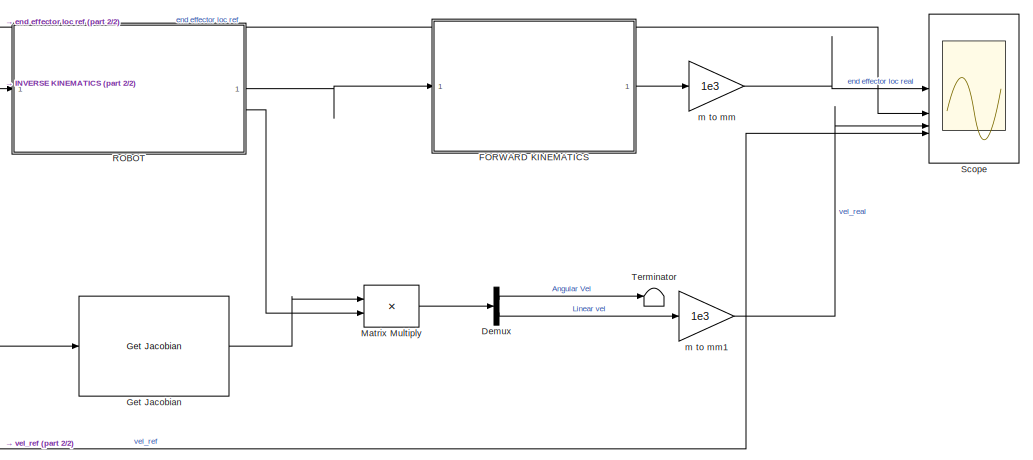
[diagram: root canvas - part 1/2, right side, full height]
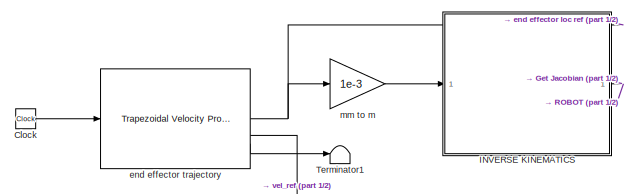
[diagram: root canvas - part 2/2, top left region]
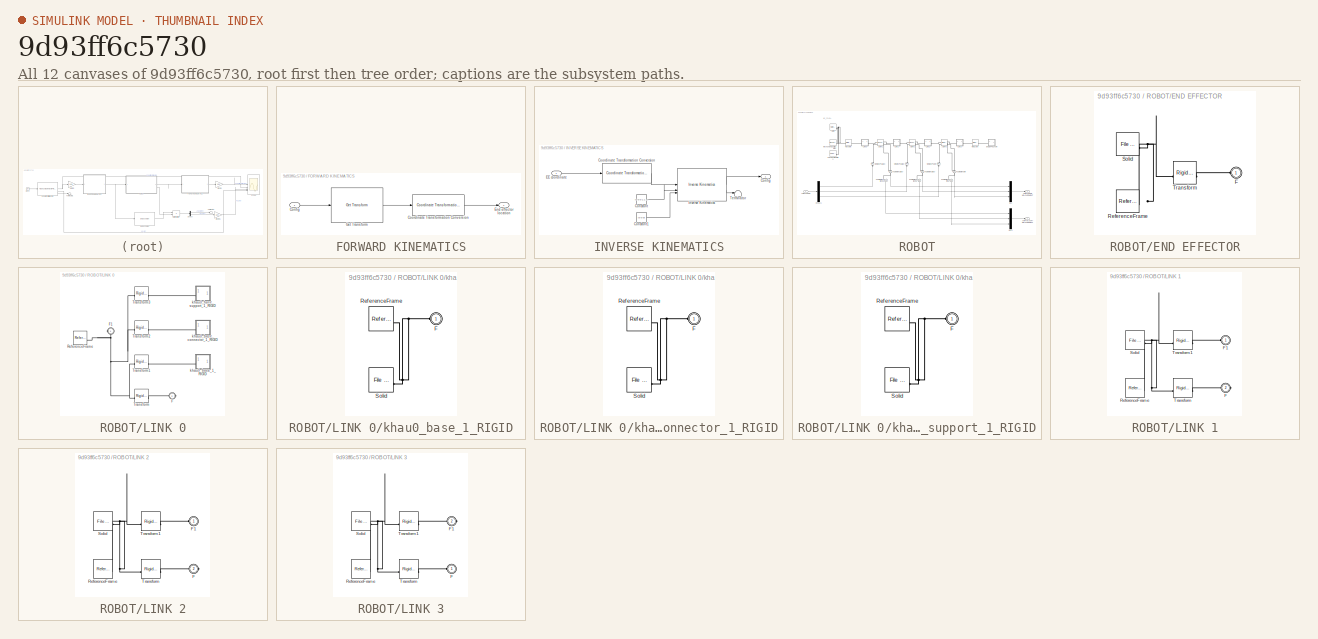
[diagram: thumbnail index - all 12 canvases of the model, root first then tree order]
MODEL slx_9d93ff6c5730
KIND model
CONFIG AbsTol = auto
CONFIG EnableMultiTasking = off
CONFIG FixedStep = 0.001
CONFIG MaxStep = auto
CONFIG MinStep = auto
CONFIG RelTol = 1e-3
CONFIG SampleTimeConstraint = Unconstrained
CONFIG SolverName = ode4
CONFIG StartTime = 0.0
CONFIG StopTime = 5
BLOCK [Clock] Clock
BLOCK [Demux] Demux
  Outputs = 2
BLOCK [SubSystem] FORWARD KINEMATICS
BLOCK [Inport] FORWARD KINEMATICS/Config
BLOCK [Reference] FORWARD KINEMATICS/Coordinate Transformation Conversion  REF=robotcorelib/Coordinate Transformation Conversion
  LibrarySourceBlock = robotutilslib/Coordinate Transformation Conversion
  SourceBlock = robotcorelib/Coordinate Transformation Conversion
  SourceType = robotics.slcore.internal.block.CoordinateTransformationConversion
BLOCK [Outport] FORWARD KINEMATICS/End effector location
BLOCK [Reference] FORWARD KINEMATICS/Get Transform  REF=robotmaniplib/Get Transform
  SourceBlock = robotmaniplib/Get Transform
  SourceType = Get Transform
BLOCK [Reference] Get Jacobian  REF=robotmaniplib/Get Jacobian
  SourceBlock = robotmaniplib/Get Jacobian
  SourceType = Get Jacobian
BLOCK [SubSystem] INVERSE KINEMATICS
BLOCK [Outport] INVERSE KINEMATICS/Config
BLOCK [Constant] INVERSE KINEMATICS/Constant
  Value = [0 0 0 1 1 1]
BLOCK [Constant] INVERSE KINEMATICS/Constant1
  Value = [0 0 0]
BLOCK [Reference] INVERSE KINEMATICS/Coordinate Transformation Conversion  REF=robotcorelib/Coordinate Transformation Conversion
  LibrarySourceBlock = robotutilslib/Coordinate Transformation Conversion
  SourceBlock = robotcorelib/Coordinate Transformation Conversion
  SourceType = robotics.slcore.internal.block.CoordinateTransformationConversion
BLOCK [Inport] INVERSE KINEMATICS/EE coordinate
BLOCK [Reference] INVERSE KINEMATICS/Inverse Kinematics  REF=robotmaniplib/Inverse Kinematics
  SourceBlock = robotmaniplib/Inverse Kinematics
  SourceType = Inverse Kinematics
BLOCK [Terminator] INVERSE KINEMATICS/Terminator
BLOCK [Product] Matrix Multiply
  Multiplication = Matrix(*)
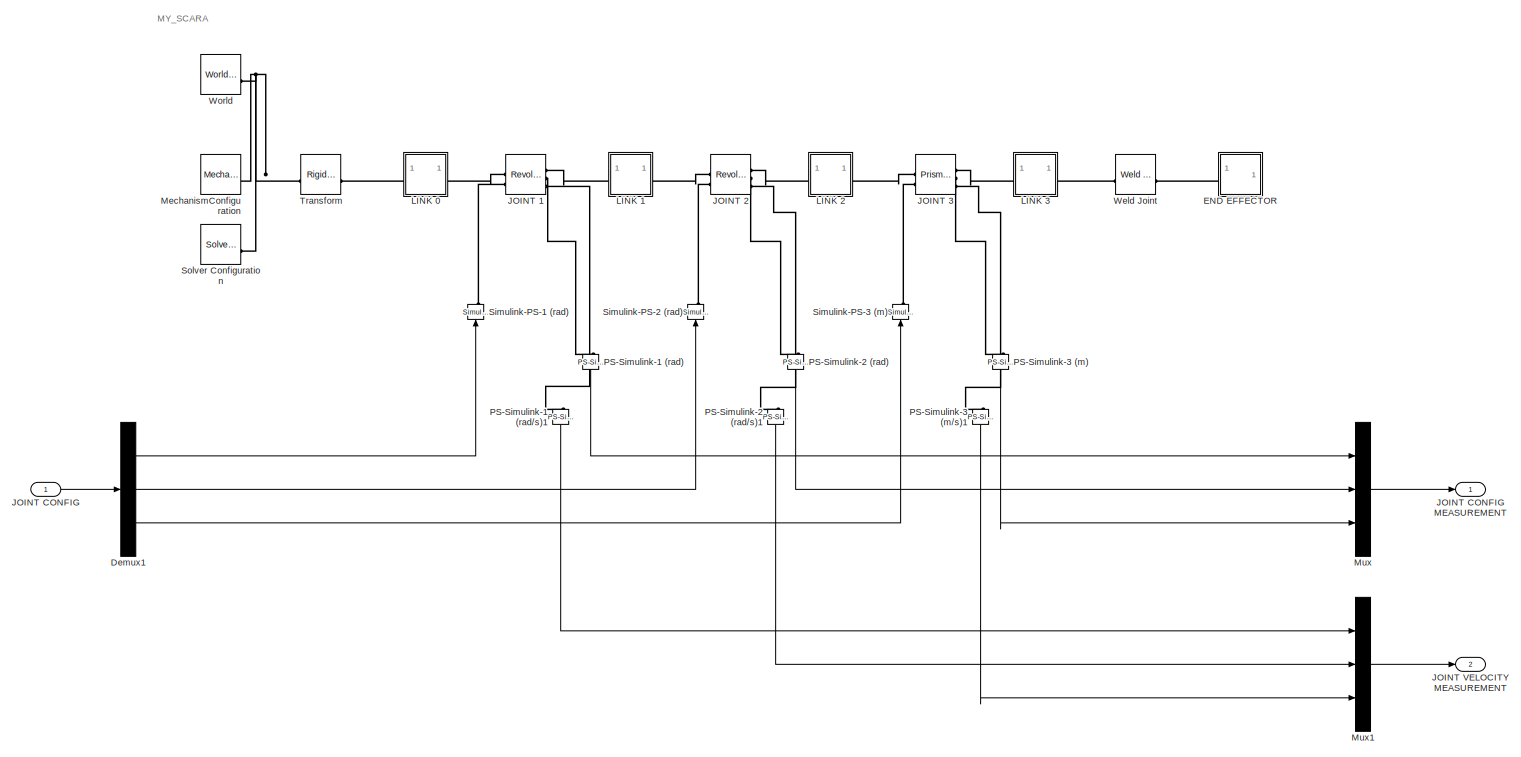
[diagram: ROBOT - part 1/1, most of the canvas]
BLOCK [SubSystem] ROBOT
BLOCK [Demux] ROBOT/Demux1
  Outputs = 3
BLOCK [SubSystem] ROBOT/END EFFECTOR
BLOCK [PMIOPort] ROBOT/END EFFECTOR/F
  Side = Left
BLOCK [Reference] ROBOT/END EFFECTOR/ReferenceFrame  REF=sm_lib/Frames and
Transforms/Reference
Frame
  SourceBlock = sm_lib/Frames and\nTransforms/Reference\nFrame
  SourceType = Reference\nFrame
BLOCK [Reference] ROBOT/END EFFECTOR/Solid  REF=sm_lib/Body Elements/File Solid
  SourceBlock = sm_lib/Body Elements/File Solid
  SourceType = File Solid
BLOCK [Reference] ROBOT/END EFFECTOR/Transform  REF=sm_lib/Frames and
Transforms/Rigid
Transform
  SourceBlock = sm_lib/Frames and\nTransforms/Rigid\nTransform
  SourceType = Rigid\nTransform
BLOCK [Reference] ROBOT/JOINT 1  REF=sm_lib/Joints/Revolute Joint
  SourceBlock = sm_lib/Joints/Revolute Joint
  SourceType = Revolute Joint
BLOCK [Reference] ROBOT/JOINT 2  REF=sm_lib/Joints/Revolute Joint
  SourceBlock = sm_lib/Joints/Revolute Joint
  SourceType = Revolute Joint
BLOCK [Reference] ROBOT/JOINT 3  REF=sm_lib/Joints/Prismatic
Joint
  SourceBlock = sm_lib/Joints/Prismatic\nJoint
  SourceType = Prismatic\nJoint
BLOCK [Inport] ROBOT/JOINT CONFIG
BLOCK [Outport] ROBOT/JOINT CONFIG MEASUREMENT
BLOCK [Outport] ROBOT/JOINT VELOCITY MEASUREMENT
  Port = 2
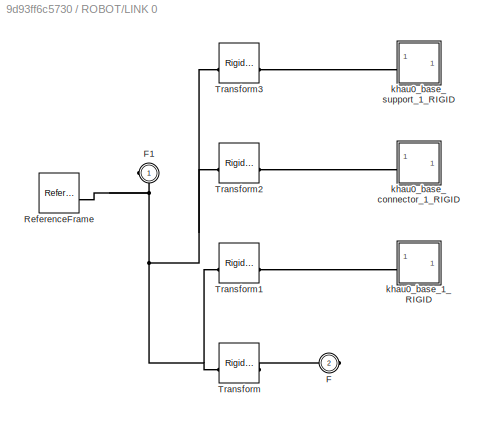
BLOCK [SubSystem] ROBOT/LINK 0
BLOCK [PMIOPort] ROBOT/LINK 0/F
  Port = 2
  Side = Right
BLOCK [PMIOPort] ROBOT/LINK 0/F1
  Side = Left
BLOCK [Reference] ROBOT/LINK 0/ReferenceFrame  REF=sm_lib/Frames and
Transforms/Reference
Frame
  SourceBlock = sm_lib/Frames and\nTransforms/Reference\nFrame
  SourceType = Reference\nFrame
BLOCK [Reference] ROBOT/LINK 0/Transform  REF=sm_lib/Frames and
Transforms/Rigid
Transform
  SourceBlock = sm_lib/Frames and\nTransforms/Rigid\nTransform
  SourceType = Rigid\nTransform
BLOCK [Reference] ROBOT/LINK 0/Transform1  REF=sm_lib/Frames and
Transforms/Rigid
Transform
  SourceBlock = sm_lib/Frames and\nTransforms/Rigid\nTransform
  SourceType = Rigid\nTransform
BLOCK [Reference] ROBOT/LINK 0/Transform2  REF=sm_lib/Frames and
Transforms/Rigid
Transform
  SourceBlock = sm_lib/Frames and\nTransforms/Rigid\nTransform
  SourceType = Rigid\nTransform
BLOCK [Reference] ROBOT/LINK 0/Transform3  REF=sm_lib/Frames and
Transforms/Rigid
Transform
  SourceBlock = sm_lib/Frames and\nTransforms/Rigid\nTransform
  SourceType = Rigid\nTransform
BLOCK [SubSystem] ROBOT/LINK 0/khau0_base_1_RIGID
BLOCK [PMIOPort] ROBOT/LINK 0/khau0_base_1_RIGID/F
  Side = Left
BLOCK [Reference] ROBOT/LINK 0/khau0_base_1_RIGID/ReferenceFrame  REF=sm_lib/Frames and
Transforms/Reference
Frame
  SourceBlock = sm_lib/Frames and\nTransforms/Reference\nFrame
  SourceType = Reference\nFrame
BLOCK [Reference] ROBOT/LINK 0/khau0_base_1_RIGID/Solid  REF=sm_lib/Body Elements/File Solid
  SourceBlock = sm_lib/Body Elements/File Solid
  SourceType = File Solid
BLOCK [SubSystem] ROBOT/LINK 0/khau0_base_connector_1_RIGID
BLOCK [PMIOPort] ROBOT/LINK 0/khau0_base_connector_1_RIGID/F
  Side = Left
BLOCK [Reference] ROBOT/LINK 0/khau0_base_connector_1_RIGID/ReferenceFrame  REF=sm_lib/Frames and
Transforms/Reference
Frame
  SourceBlock = sm_lib/Frames and\nTransforms/Reference\nFrame
  SourceType = Reference\nFrame
BLOCK [Reference] ROBOT/LINK 0/khau0_base_connector_1_RIGID/Solid  REF=sm_lib/Body Elements/File Solid
  SourceBlock = sm_lib/Body Elements/File Solid
  SourceType = File Solid
BLOCK [SubSystem] ROBOT/LINK 0/khau0_base_support_1_RIGID
BLOCK [PMIOPort] ROBOT/LINK 0/khau0_base_support_1_RIGID/F
  Side = Left
BLOCK [Reference] ROBOT/LINK 0/khau0_base_support_1_RIGID/ReferenceFrame  REF=sm_lib/Frames and
Transforms/Reference
Frame
  SourceBlock = sm_lib/Frames and\nTransforms/Reference\nFrame
  SourceType = Reference\nFrame
BLOCK [Reference] ROBOT/LINK 0/khau0_base_support_1_RIGID/Solid  REF=sm_lib/Body Elements/File Solid
  SourceBlock = sm_lib/Body Elements/File Solid
  SourceType = File Solid
BLOCK [SubSystem] ROBOT/LINK 1
BLOCK [PMIOPort] ROBOT/LINK 1/F
  Port = 2
  Side = Right
BLOCK [PMIOPort] ROBOT/LINK 1/F1
  Side = Left
BLOCK [Reference] ROBOT/LINK 1/ReferenceFrame  REF=sm_lib/Frames and
Transforms/Reference
Frame
  SourceBlock = sm_lib/Frames and\nTransforms/Reference\nFrame
  SourceType = Reference\nFrame
BLOCK [Reference] ROBOT/LINK 1/Solid  REF=sm_lib/Body Elements/File Solid
  SourceBlock = sm_lib/Body Elements/File Solid
  SourceType = File Solid
BLOCK [Reference] ROBOT/LINK 1/Transform  REF=sm_lib/Frames and
Transforms/Rigid
Transform
  SourceBlock = sm_lib/Frames and\nTransforms/Rigid\nTransform
  SourceType = Rigid\nTransform
BLOCK [Reference] ROBOT/LINK 1/Transform1  REF=sm_lib/Frames and
Transforms/Rigid
Transform
  SourceBlock = sm_lib/Frames and\nTransforms/Rigid\nTransform
  SourceType = Rigid\nTransform
BLOCK [SubSystem] ROBOT/LINK 2
BLOCK [PMIOPort] ROBOT/LINK 2/F
  Port = 2
  Side = Right
BLOCK [PMIOPort] ROBOT/LINK 2/F1
  Side = Left
BLOCK [Reference] ROBOT/LINK 2/ReferenceFrame  REF=sm_lib/Frames and
Transforms/Reference
Frame
  SourceBlock = sm_lib/Frames and\nTransforms/Reference\nFrame
  SourceType = Reference\nFrame
BLOCK [Reference] ROBOT/LINK 2/Solid  REF=sm_lib/Body Elements/File Solid
  SourceBlock = sm_lib/Body Elements/File Solid
  SourceType = File Solid
BLOCK [Reference] ROBOT/LINK 2/Transform  REF=sm_lib/Frames and
Transforms/Rigid
Transform
  SourceBlock = sm_lib/Frames and\nTransforms/Rigid\nTransform
  SourceType = Rigid\nTransform
BLOCK [Reference] ROBOT/LINK 2/Transform1  REF=sm_lib/Frames and
Transforms/Rigid
Transform
  SourceBlock = sm_lib/Frames and\nTransforms/Rigid\nTransform
  SourceType = Rigid\nTransform
BLOCK [SubSystem] ROBOT/LINK 3
BLOCK [PMIOPort] ROBOT/LINK 3/F
  Side = Left
BLOCK [PMIOPort] ROBOT/LINK 3/F1
  Port = 2
  Side = Right
BLOCK [Reference] ROBOT/LINK 3/ReferenceFrame  REF=sm_lib/Frames and
Transforms/Reference
Frame
  SourceBlock = sm_lib/Frames and\nTransforms/Reference\nFrame
  SourceType = Reference\nFrame
BLOCK [Reference] ROBOT/LINK 3/Solid  REF=sm_lib/Body Elements/File Solid
  SourceBlock = sm_lib/Body Elements/File Solid
  SourceType = File Solid
BLOCK [Reference] ROBOT/LINK 3/Transform  REF=sm_lib/Frames and
Transforms/Rigid
Transform
  SourceBlock = sm_lib/Frames and\nTransforms/Rigid\nTransform
  SourceType = Rigid\nTransform
BLOCK [Reference] ROBOT/LINK 3/Transform1  REF=sm_lib/Frames and
Transforms/Rigid
Transform
  SourceBlock = sm_lib/Frames and\nTransforms/Rigid\nTransform
  SourceType = Rigid\nTransform
BLOCK [Reference] ROBOT/MechanismConfiguration  REF=sm_lib/Utilities/Mechanism
Configuration
  SourceBlock = sm_lib/Utilities/Mechanism\nConfiguration
  SourceType = Mechanism\nConfiguration
BLOCK [Mux] ROBOT/Mux
  DisplayOption = bar
  Inputs = 3
BLOCK [Mux] ROBOT/Mux1
  DisplayOption = bar
  Inputs = 3
BLOCK [Reference] ROBOT/PS-Simulink-1 (rad)  REF=nesl_utility/PS-Simulink
Converter
  NameLocation = left
  SourceBlock = nesl_utility/PS-Simulink\nConverter
  SourceType = PS-Simulink\nConverter
BLOCK [Reference] ROBOT/PS-Simulink-1 (rad//s)1  REF=nesl_utility/PS-Simulink
Converter
  NameLocation = left
  SourceBlock = nesl_utility/PS-Simulink\nConverter
  SourceType = PS-Simulink\nConverter
BLOCK [Reference] ROBOT/PS-Simulink-2 (rad)  REF=nesl_utility/PS-Simulink
Converter
  NameLocation = left
  SourceBlock = nesl_utility/PS-Simulink\nConverter
  SourceType = PS-Simulink\nConverter
BLOCK [Reference] ROBOT/PS-Simulink-2 (rad//s)1  REF=nesl_utility/PS-Simulink
Converter
  NameLocation = left
  SourceBlock = nesl_utility/PS-Simulink\nConverter
  SourceType = PS-Simulink\nConverter
BLOCK [Reference] ROBOT/PS-Simulink-3 (m)  REF=nesl_utility/PS-Simulink
Converter
  NameLocation = left
  SourceBlock = nesl_utility/PS-Simulink\nConverter
  SourceType = PS-Simulink\nConverter
BLOCK [Reference] ROBOT/PS-Simulink-3 (m//s)1  REF=nesl_utility/PS-Simulink
Converter
  NameLocation = left
  SourceBlock = nesl_utility/PS-Simulink\nConverter
  SourceType = PS-Simulink\nConverter
BLOCK [Reference] ROBOT/Simulink-PS-1 (rad)  REF=nesl_utility/Simulink-PS
Converter
  NameLocation = right
  SourceBlock = nesl_utility/Simulink-PS\nConverter
  SourceType = Simulink-PS\nConverter
BLOCK [Reference] ROBOT/Simulink-PS-2 (rad)  REF=nesl_utility/Simulink-PS
Converter
  NameLocation = right
  SourceBlock = nesl_utility/Simulink-PS\nConverter
  SourceType = Simulink-PS\nConverter
BLOCK [Reference] ROBOT/Simulink-PS-3 (m)  REF=nesl_utility/Simulink-PS
Converter
  NameLocation = right
  SourceBlock = nesl_utility/Simulink-PS\nConverter
  SourceType = Simulink-PS\nConverter
BLOCK [Reference] ROBOT/Solver Configuration  REF=nesl_utility/Solver
Configuration
  SourceBlock = nesl_utility/Solver\nConfiguration
  SourceType = Solver\nConfiguration
BLOCK [Reference] ROBOT/Transform  REF=sm_lib/Frames and
Transforms/Rigid
Transform
  SourceBlock = sm_lib/Frames and\nTransforms/Rigid\nTransform
  SourceType = Rigid\nTransform
BLOCK [Reference] ROBOT/Weld Joint  REF=sm_lib/Joints/Weld Joint
  SourceBlock = sm_lib/Joints/Weld Joint
  SourceType = Weld Joint
BLOCK [Reference] ROBOT/World  REF=sm_lib/Frames and
Transforms/World Frame
  SourceBlock = sm_lib/Frames and\nTransforms/World Frame
  SourceType = World Frame
BLOCK [Scope] Scope
  Floating = off
  NumInputPorts = 4
  ScopeSpecificationString = Simulink.scopes.TimeScopeBlockCfg('CurrentConfiguration', extmgr.ConfigurationSet(extmgr.Configuration('Core','General UI',true),extmgr.Configuration('Core','Source UI',true),extmgr.Configuration('Sources','WiredSimulink',true,'DataLoggingVariableName','ScopeData1'),extmgr.Configuration('Visuals','Time Domain',true,'SerializedDisplays',{struct('MinYLimReal','-119.375','MaxYLimReal','1074.37501','Y...<+3631ch>
BLOCK [Terminator] Terminator
BLOCK [Terminator] Terminator1
BLOCK [Reference] end effector trajectory  REF=robotcorelib/Trapezoidal Velocity Profile Trajectory
  LibrarySourceBlock = robotutilslib/Trapezoidal Velocity Profile Trajectory
  SourceBlock = robotcorelib/Trapezoidal Velocity Profile Trajectory
  SourceType = robotics.slcore.internal.block.TrapVelTrajSys
BLOCK [Gain] m to mm
  Gain = 1e3
BLOCK [Gain] m to mm1
  Gain = 1e3
BLOCK [Gain] mm to m
  Gain = 1e-3
ANNOTATION ROBOT: MY_SCARA
LINE Clock:1 -> end effector trajectory:1
LINE Demux:1 -> Terminator:1
LINE Demux:2 -> m to mm1:1
LINE FORWARD KINEMATICS/Config:1 -> FORWARD KINEMATICS/Get Transform:1
LINE FORWARD KINEMATICS/Coordinate Transformation Conversion:1 -> FORWARD KINEMATICS/End effector location:1
LINE FORWARD KINEMATICS/Get Transform:1 -> FORWARD KINEMATICS/Coordinate Transformation Conversion:1
LINE FORWARD KINEMATICS:1 -> m to mm:1
LINE Get Jacobian:1 -> Matrix Multiply:1
LINE INVERSE KINEMATICS/Constant1:1 -> INVERSE KINEMATICS/Inverse Kinematics:3
LINE INVERSE KINEMATICS/Constant:1 -> INVERSE KINEMATICS/Inverse Kinematics:2
LINE INVERSE KINEMATICS/Coordinate Transformation Conversion:1 -> INVERSE KINEMATICS/Inverse Kinematics:1
LINE INVERSE KINEMATICS/EE coordinate:1 -> INVERSE KINEMATICS/Coordinate Transformation Conversion:1
LINE INVERSE KINEMATICS/Inverse Kinematics:1 -> INVERSE KINEMATICS/Config:1
LINE INVERSE KINEMATICS/Inverse Kinematics:2 -> INVERSE KINEMATICS/Terminator:1
NET INVERSE KINEMATICS:1 -> Get Jacobian:1, ROBOT:1
LINE Matrix Multiply:1 -> Demux:1
LINE ROBOT/Demux1:1 -> ROBOT/Simulink-PS-1 (rad):1
LINE ROBOT/Demux1:2 -> ROBOT/Simulink-PS-2 (rad):1
LINE ROBOT/Demux1:3 -> ROBOT/Simulink-PS-3 (m):1
LINE ROBOT/JOINT CONFIG:1 -> ROBOT/Demux1:1
LINE ROBOT/Mux1:1 -> ROBOT/JOINT VELOCITY MEASUREMENT:1
LINE ROBOT/Mux:1 -> ROBOT/JOINT CONFIG MEASUREMENT:1
LINE ROBOT/PS-Simulink-1 (rad):1 -> ROBOT/Mux:1
LINE ROBOT/PS-Simulink-1 (rad//s)1:1 -> ROBOT/Mux1:1
LINE ROBOT/PS-Simulink-2 (rad):1 -> ROBOT/Mux:2
LINE ROBOT/PS-Simulink-2 (rad//s)1:1 -> ROBOT/Mux1:2
LINE ROBOT/PS-Simulink-3 (m):1 -> ROBOT/Mux:3
LINE ROBOT/PS-Simulink-3 (m//s)1:1 -> ROBOT/Mux1:3
LINE ROBOT:1 -> FORWARD KINEMATICS:1
LINE ROBOT:2 -> Matrix Multiply:2
NET end effector trajectory:1 -> Scope:2, mm to m:1
LINE end effector trajectory:2 -> Scope:4
LINE end effector trajectory:3 -> Terminator1:1
LINE m to mm1:1 -> Scope:3
LINE m to mm:1 -> Scope:1
LINE mm to m:1 -> INVERSE KINEMATICS:1
PLINE ROBOT/END EFFECTOR/F:RConn1 -- ROBOT/END EFFECTOR/Transform:RConn1
PNET net1: ROBOT/END EFFECTOR/ReferenceFrame:RConn1 -- ROBOT/END EFFECTOR/Solid:RConn1 -- ROBOT/END EFFECTOR/Transform:LConn1
PLINE ROBOT/END EFFECTOR:LConn1 -- ROBOT/Weld Joint:RConn1
PLINE ROBOT/JOINT 1:LConn1 -- ROBOT/LINK 0:RConn1
PLINE ROBOT/JOINT 1:LConn2 -- ROBOT/Simulink-PS-1 (rad):RConn1
PLINE ROBOT/JOINT 1:RConn1 -- ROBOT/LINK 1:LConn1
PLINE ROBOT/JOINT 1:RConn2 -- ROBOT/PS-Simulink-1 (rad):LConn1
PLINE ROBOT/JOINT 1:RConn3 -- ROBOT/PS-Simulink-1 (rad//s)1:LConn1
PLINE ROBOT/JOINT 2:LConn1 -- ROBOT/LINK 1:RConn1
PLINE ROBOT/JOINT 2:LConn2 -- ROBOT/Simulink-PS-2 (rad):RConn1
PLINE ROBOT/JOINT 2:RConn1 -- ROBOT/LINK 2:LConn1
PLINE ROBOT/JOINT 2:RConn2 -- ROBOT/PS-Simulink-2 (rad):LConn1
PLINE ROBOT/JOINT 2:RConn3 -- ROBOT/PS-Simulink-2 (rad//s)1:LConn1
PLINE ROBOT/JOINT 3:LConn1 -- ROBOT/LINK 2:RConn1
PLINE ROBOT/JOINT 3:LConn2 -- ROBOT/Simulink-PS-3 (m):RConn1
PLINE ROBOT/JOINT 3:RConn1 -- ROBOT/LINK 3:LConn1
PLINE ROBOT/JOINT 3:RConn2 -- ROBOT/PS-Simulink-3 (m):LConn1
PLINE ROBOT/JOINT 3:RConn3 -- ROBOT/PS-Simulink-3 (m//s)1:LConn1
PNET net2: ROBOT/LINK 0/F1:RConn1 -- ROBOT/LINK 0/ReferenceFrame:RConn1 -- ROBOT/LINK 0/Transform1:LConn1 -- ROBOT/LINK 0/Transform2:LConn1 -- ROBOT/LINK 0/Transform3:LConn1 -- ROBOT/LINK 0/Transform:LConn1
PLINE ROBOT/LINK 0/F:RConn1 -- ROBOT/LINK 0/Transform:RConn1
PLINE ROBOT/LINK 0/Transform1:RConn1 -- ROBOT/LINK 0/khau0_base_1_RIGID:LConn1
PLINE ROBOT/LINK 0/Transform2:RConn1 -- ROBOT/LINK 0/khau0_base_connector_1_RIGID:LConn1
PLINE ROBOT/LINK 0/Transform3:RConn1 -- ROBOT/LINK 0/khau0_base_support_1_RIGID:LConn1
PNET net3: ROBOT/LINK 0/khau0_base_1_RIGID/F:RConn1 -- ROBOT/LINK 0/khau0_base_1_RIGID/ReferenceFrame:RConn1 -- ROBOT/LINK 0/khau0_base_1_RIGID/Solid:RConn1
PNET net4: ROBOT/LINK 0/khau0_base_connector_1_RIGID/F:RConn1 -- ROBOT/LINK 0/khau0_base_connector_1_RIGID/ReferenceFrame:RConn1 -- ROBOT/LINK 0/khau0_base_connector_1_RIGID/Solid:RConn1
PNET net5: ROBOT/LINK 0/khau0_base_support_1_RIGID/F:RConn1 -- ROBOT/LINK 0/khau0_base_support_1_RIGID/ReferenceFrame:RConn1 -- ROBOT/LINK 0/khau0_base_support_1_RIGID/Solid:RConn1
PLINE ROBOT/LINK 0:LConn1 -- ROBOT/Transform:RConn1
PLINE ROBOT/LINK 1/F1:RConn1 -- ROBOT/LINK 1/Transform1:RConn1
PLINE ROBOT/LINK 1/F:RConn1 -- ROBOT/LINK 1/Transform:RConn1
PNET net6: ROBOT/LINK 1/ReferenceFrame:RConn1 -- ROBOT/LINK 1/Solid:RConn1 -- ROBOT/LINK 1/Transform1:LConn1 -- ROBOT/LINK 1/Transform:LConn1
PLINE ROBOT/LINK 2/F1:RConn1 -- ROBOT/LINK 2/Transform1:RConn1
PLINE ROBOT/LINK 2/F:RConn1 -- ROBOT/LINK 2/Transform:RConn1
PNET net7: ROBOT/LINK 2/ReferenceFrame:RConn1 -- ROBOT/LINK 2/Solid:RConn1 -- ROBOT/LINK 2/Transform1:LConn1 -- ROBOT/LINK 2/Transform:LConn1
PLINE ROBOT/LINK 3/F1:RConn1 -- ROBOT/LINK 3/Transform1:RConn1
PLINE ROBOT/LINK 3/F:RConn1 -- ROBOT/LINK 3/Transform:RConn1
PNET net8: ROBOT/LINK 3/ReferenceFrame:RConn1 -- ROBOT/LINK 3/Solid:RConn1 -- ROBOT/LINK 3/Transform1:LConn1 -- ROBOT/LINK 3/Transform:LConn1
PLINE ROBOT/LINK 3:RConn1 -- ROBOT/Weld Joint:LConn1
PNET net9: ROBOT/MechanismConfiguration:RConn1 -- ROBOT/Solver Configuration:RConn1 -- ROBOT/Transform:LConn1 -- ROBOT/World:RConn1
note: NET lines group one-source signal fan-out (src -> all destinations, sorted); 1:1 wires keep LINE; PNET lines group multi-terminal physical nets as a canonical sorted terminal list (undirected conserving connections); 2-terminal nets keep the pairwise PLINE form
